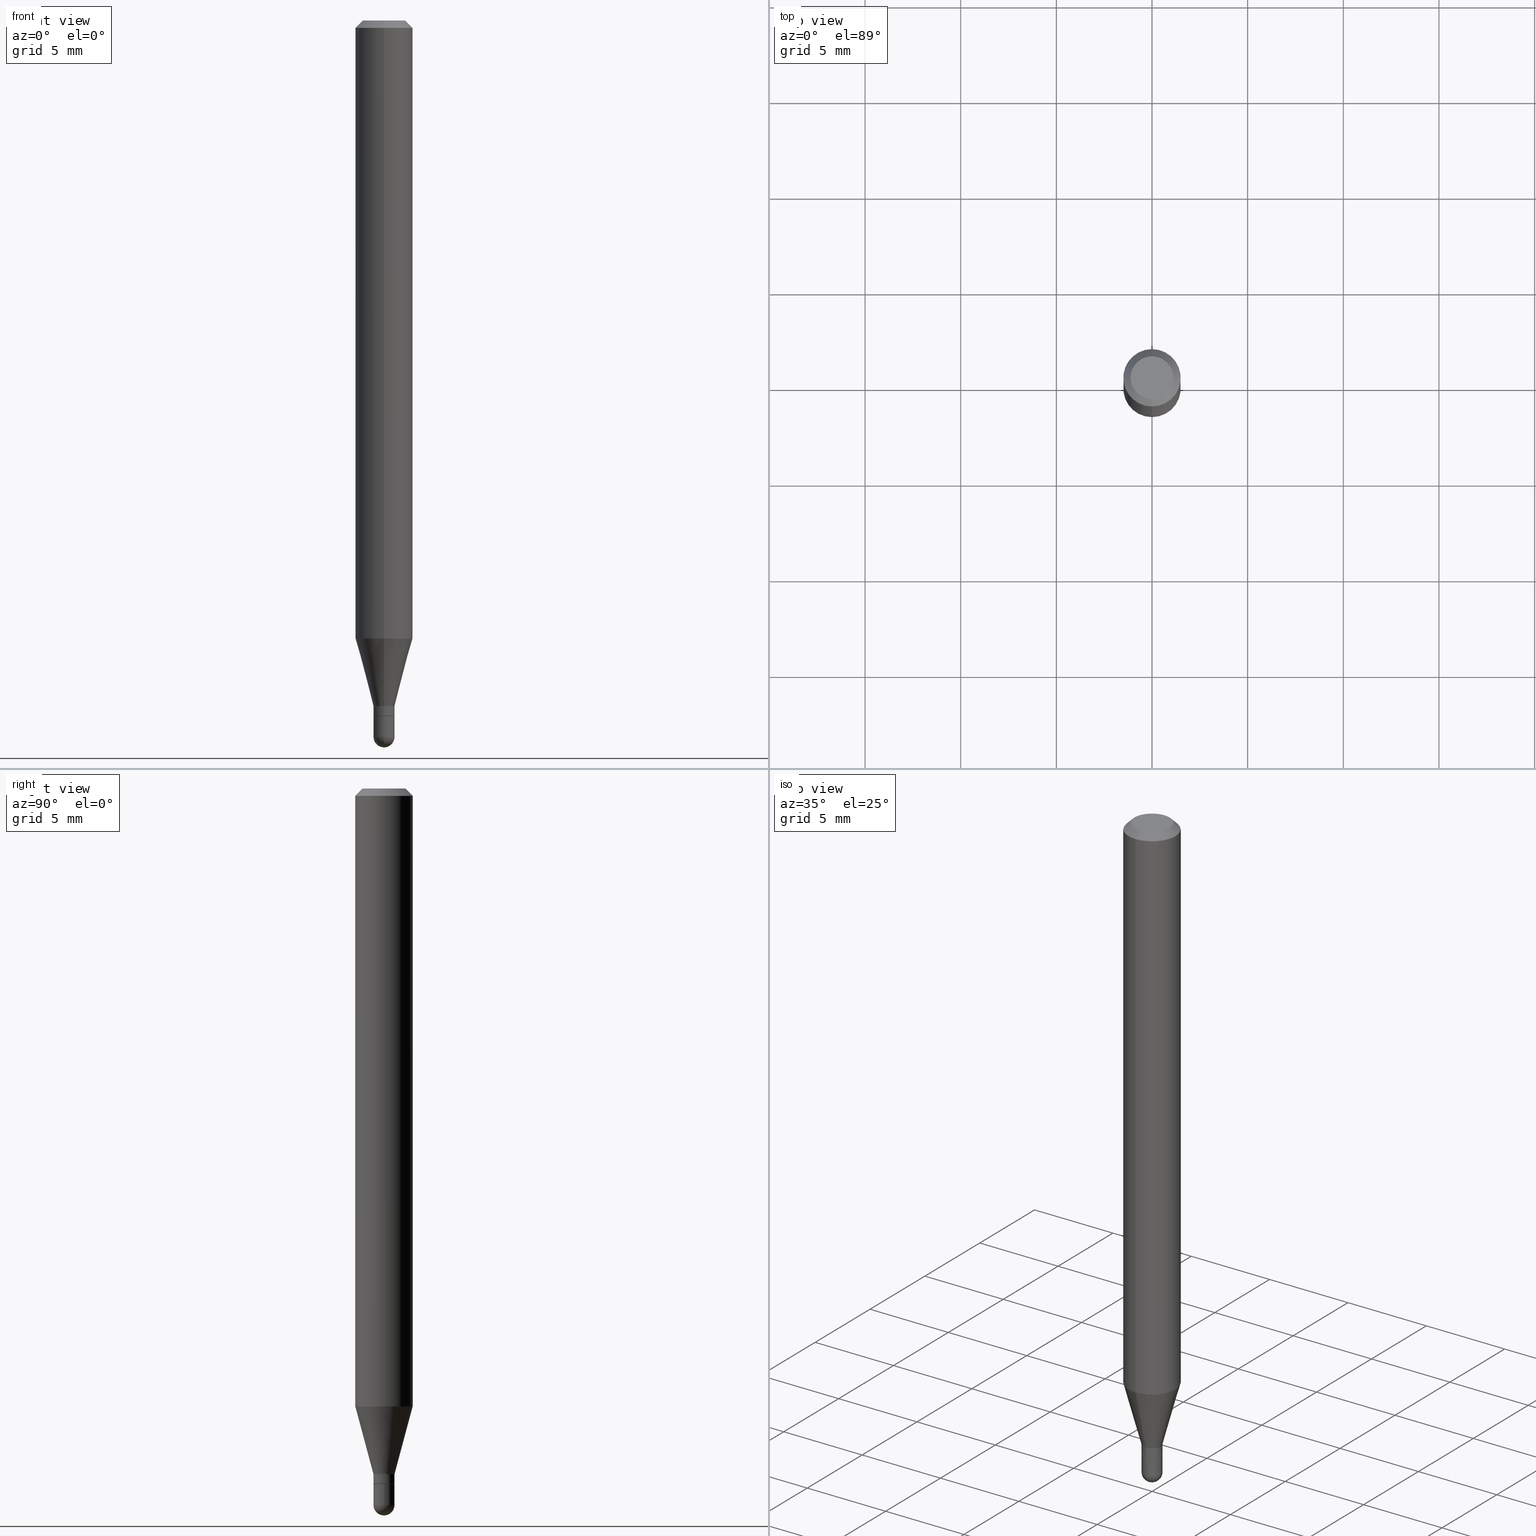
[diagram: canonical four-view strip — front | top / right | iso, engineering-drawing reading convention]
A machine part, canonical four-view strip (front | top / right | iso — engineering-drawing reading convention). The complete STEP part file that produces these views, byte-faithful:
ISO-10303-21;
HEADER;
FILE_DESCRIPTION (( 'STEP AP203' ),
    '1' );
FILE_NAME ('02928.STEP',
    '2024-03-07T21:47:33',
    ( '' ),
    ( '' ),
    'SwSTEP 2.0',
    'SolidWorks 2023',
    '' );
FILE_SCHEMA (( 'CONFIG_CONTROL_DESIGN' ));
ENDSEC;

DATA;
#1 = ORIENTED_EDGE ( 'NONE', *, *, #194, .F. ) ;
#2 = DIRECTION ( 'NONE',  ( -6.982962677686265922E-15, -1.000000000000000000, 4.626330217890369336E-15 ) ) ;
#3 = CARTESIAN_POINT ( 'NONE',  ( -0.02164999999999999564, 1.538325022920616592E-16, -1.064949447040186851E-30 ) ) ;
#4 = FACE_OUTER_BOUND ( 'NONE', #406, .T. ) ;
#5 = DIRECTION ( 'NONE',  ( -6.982962677686265922E-15, -1.000000000000000000, 3.505890868245046092E-15 ) ) ;
#6 = ORIENTED_EDGE ( 'NONE', *, *, #507, .F. ) ;
#7 = ADVANCED_FACE ( 'NONE', ( #501 ), #350, .T. ) ;
#8 = CARTESIAN_POINT ( 'NONE',  ( -3.536586717851222218E-16, -0.04404999999999999888, 6.220162960281877203E-17 ) ) ;
#9 = DIRECTION ( 'NONE',  ( 6.982962677686265922E-15, 1.000000000000000000, -3.492238314359125882E-15 ) ) ;
#10 = CIRCLE ( 'NONE', #74, 0.02164999999999999564 ) ;
#11 = CARTESIAN_POINT ( 'NONE',  ( -1.476896606330294964E-16, -0.02115000000000499467, -1.431100000000000039 ) ) ;
#12 = LINE ( 'NONE', #3, #38 ) ;
#13 = FACE_OUTER_BOUND ( 'NONE', #459, .T. ) ;
#14 = CARTESIAN_POINT ( 'NONE',  ( 3.499710408531548465E-29, -4.996658944018425519E-15, -1.431100000000000039 ) ) ;
#15 = EDGE_CURVE ( 'NONE', #269, #33, #77, .T. ) ;
#16 = DIRECTION ( 'NONE',  ( 1.000000000000000000, -6.982962677686269866E-15, 0.000000000000000000 ) ) ;
#17 =( LENGTH_UNIT ( ) NAMED_UNIT ( * ) SI_UNIT ( $, .METRE. ) );
#18 = CIRCLE ( 'NONE', #318, 0.02164999999999999564 ) ;
#19 = AXIS2_PLACEMENT_3D ( 'NONE', #231, #393, #473 ) ;
#20 = CC_DESIGN_APPROVAL ( #403, ( #260 ) ) ;
#21 = ORIENTED_EDGE ( 'NONE', *, *, #41, .F. ) ;
#22 = PERSON_AND_ORGANIZATION_ROLE ( 'design_supplier' ) ;
#23 = DIRECTION ( 'NONE',  ( -6.982962677686266711E-15, -1.000000000000000000, 0.000000000000000000 ) ) ;
#24 = ORIENTED_EDGE ( 'NONE', *, *, #165, .T. ) ;
#25 = PERSON_AND_ORGANIZATION ( #446, #167 ) ;
#26 = ORIENTED_EDGE ( 'NONE', *, *, #246, .F. ) ;
#27 = PLANE ( 'NONE',  #211 ) ;
#28 = PRODUCT ( '02928', '02928', '', ( #142 ) ) ;
#29 = LOCAL_TIME ( 16, 47, 33.00000000000000000, #149 ) ;
#30 = DATE_TIME_ROLE ( 'creation_date' ) ;
#31 = EDGE_LOOP ( 'NONE', ( #463, #454, #349, #73 ) ) ;
#32 = EDGE_LOOP ( 'NONE', ( #222, #511, #417, #303, #255 ) ) ;
#33 = VERTEX_POINT ( 'NONE', #228 ) ;
#34 = ORIENTED_EDGE ( 'NONE', *, *, #227, .T. ) ;
#35 = ORIENTED_EDGE ( 'NONE', *, *, #187, .T. ) ;
#36 = VERTEX_POINT ( 'NONE', #312 ) ;
#37 = ORIENTED_EDGE ( 'NONE', *, *, #467, .F. ) ;
#38 = VECTOR ( 'NONE', #171, 39.37007874015748143 ) ;
#39 = VECTOR ( 'NONE', #388, 39.37007874015748143 ) ;
#40 =( GEOMETRIC_REPRESENTATION_CONTEXT ( 3 ) GLOBAL_UNCERTAINTY_ASSIGNED_CONTEXT ( ( #425 ) ) GLOBAL_UNIT_ASSIGNED_CONTEXT ( ( #447, #455, #241 ) ) REPRESENTATION_CONTEXT ( 'NONE', 'WORKASPACE' ) );
#41 = EDGE_CURVE ( 'NONE', #339, #307, #460, .T. ) ;
#42 = CARTESIAN_POINT ( 'NONE',  ( 0.02164999999999999564, -1.511811419719076571E-16, 1.055692271959819963E-30 ) ) ;
#43 = CALENDAR_DATE ( 2024, 7, 3 ) ;
#44 = VERTEX_POINT ( 'NONE', #306 ) ;
#45 = ADVANCED_FACE ( 'NONE', ( #270 ), #464, .T. ) ;
#46 = CARTESIAN_POINT ( 'NONE',  ( 3.450055134574933114E-29, -4.927897485392160826E-15, -1.411099999999999799 ) ) ;
#47 = DIRECTION ( 'NONE',  ( -6.982962677686265133E-15, -1.000000000000000000, 0.000000000000000000 ) ) ;
#48 = AXIS2_PLACEMENT_3D ( 'NONE', #374, #411, #408 ) ;
#49 = DIRECTION ( 'NONE',  ( 1.000000000000000000, -7.105427357601001070E-15, 4.926315508542082329E-29 ) ) ;
#50 = CARTESIAN_POINT ( 'NONE',  ( 3.605721481279674399E-29, -5.148014660057275794E-15, -1.474449999999999816 ) ) ;
#51 = DIRECTION ( 'NONE',  ( 7.105427357601001070E-15, 1.000000000000000000, 0.000000000000000000 ) ) ;
#52 = DIRECTION ( 'NONE',  ( -2.444940213007535554E-29, 3.492238314359125882E-15, 1.000000000000000000 ) ) ;
#53 = LINE ( 'NONE', #11, #39 ) ;
#54 = LINE ( 'NONE', #429, #328 ) ;
#55 = CONICAL_SURFACE ( 'NONE', #277, 0.02165000000000018646, 0.2617993877991501295 ) ;
#56 = AXIS2_PLACEMENT_3D ( 'NONE', #46, #84, #438 ) ;
#57 = CARTESIAN_POINT ( 'NONE',  ( 3.599717260347271507E-16, 0.04404999999999999888, -2.454645658922200893E-16 ) ) ;
#58 = EDGE_CURVE ( 'NONE', #380, #44, #54, .T. ) ;
#59 = DIRECTION ( 'NONE',  ( 2.444940213007535554E-29, -3.492238314359125487E-15, -1.000000000000000000 ) ) ;
#60 = DIRECTION ( 'NONE',  ( 1.839019923739599526E-15, 0.2588190451025248473, 0.9659258262890673130 ) ) ;
#61 = EDGE_CURVE ( 'NONE', #104, #486, #247, .T. ) ;
#62 = DIRECTION ( 'NONE',  ( -6.982962677686265922E-15, -1.000000000000000000, 0.000000000000000000 ) ) ;
#63 = APPROVAL_DATE_TIME ( #404, #403 ) ;
#64 = CARTESIAN_POINT ( 'NONE',  ( 3.498953938835084060E-29, -4.997742251679343880E-15, -1.431100000000000039 ) ) ;
#65 = EDGE_CURVE ( 'NONE', #36, #249, #206, .T. ) ;
#66 = CALENDAR_DATE ( 2024, 7, 3 ) ;
#67 = LINE ( 'NONE', #484, #139 ) ;
#68 = LINE ( 'NONE', #135, #98 ) ;
#69 = CIRCLE ( 'NONE', #19, 0.05904999999999999832 ) ;
#70 = ORIENTED_EDGE ( 'NONE', *, *, #507, .T. ) ;
#71 = ORIENTED_EDGE ( 'NONE', *, *, #334, .T. ) ;
#72 = EDGE_CURVE ( 'NONE', #44, #249, #130, .T. ) ;
#73 = ORIENTED_EDGE ( 'NONE', *, *, #187, .F. ) ;
#74 = AXIS2_PLACEMENT_3D ( 'NONE', #366, #216, #372 ) ;
#75 = CC_DESIGN_APPROVAL ( #158, ( #268 ) ) ;
#76 = APPROVAL_STATUS ( 'not_yet_approved' ) ;
#77 = LINE ( 'NONE', #42, #474 ) ;
#78 = CARTESIAN_POINT ( 'NONE',  ( 3.603870046263601126E-29, -5.150666020377430166E-15, -1.474449999999999816 ) ) ;
#79 = DIRECTION ( 'NONE',  ( 1.000000000000000000, -6.982962677686265922E-15, 4.883557194083112340E-29 ) ) ;
#80 = ADVANCED_FACE ( 'NONE', ( #287 ), #204, .T. ) ;
#81 = DIRECTION ( 'NONE',  ( -6.982962677686265922E-15, -1.000000000000000000, 0.000000000000000000 ) ) ;
#82 = AXIS2_PLACEMENT_3D ( 'NONE', #471, #400, #47 ) ;
#83 = VECTOR ( 'NONE', #309, 39.37007874015748143 ) ;
#84 = DIRECTION ( 'NONE',  ( -2.444940213007535554E-29, 3.492238314359125487E-15, 1.000000000000000000 ) ) ;
#85 = CARTESIAN_POINT ( 'NONE',  ( 2.240334612438976908E-45, -3.199989238559014151E-31, -9.163146814470068329E-17 ) ) ;
#86 = EDGE_CURVE ( 'NONE', #33, #371, #18, .T. ) ;
#87 = CARTESIAN_POINT ( 'NONE',  ( 3.605721481279674399E-29, -5.148014660057275794E-15, -1.474449999999999816 ) ) ;
#88 = SPHERICAL_SURFACE ( 'NONE', #414, 0.02165000000000001298 ) ;
#89 = PRODUCT_DEFINITION ( 'UNKNOWN', '', #260, #229 ) ;
#90 = DIRECTION ( 'NONE',  ( -6.982962677686265922E-15, -1.000000000000000000, 4.626330217890369336E-15 ) ) ;
#91 = CARTESIAN_POINT ( 'NONE',  ( 3.667410319511325366E-31, -5.238357471538720427E-17, -0.01500000000000009139 ) ) ;
#92 = AXIS2_PLACEMENT_3D ( 'NONE', #320, #398, #384 ) ;
#93 = CARTESIAN_POINT ( 'NONE',  ( 3.498953938835084060E-29, -4.997742251679343880E-15, -1.431100000000000039 ) ) ;
#94 = DIRECTION ( 'NONE',  ( 2.438088387897960049E-29, -3.491481338843145188E-15, -1.000000000000000000 ) ) ;
#95 = DIRECTION ( 'NONE',  ( -2.444940213007535554E-29, 3.492238314359125487E-15, 1.000000000000000000 ) ) ;
#96 = ADVANCED_FACE ( 'NONE', ( #390 ), #55, .T. ) ;
#97 = COORDINATED_UNIVERSAL_TIME_OFFSET ( 5, 0, .BEHIND. ) ;
#98 = VECTOR ( 'NONE', #405, 39.37007874015748143 ) ;
#99 = APPROVAL_STATUS ( 'not_yet_approved' ) ;
#100 = FACE_OUTER_BOUND ( 'NONE', #495, .T. ) ;
#101 = EDGE_LOOP ( 'NONE', ( #245, #336, #184, #106 ) ) ;
#102 = ADVANCED_FACE ( 'NONE', ( #202 ), #337, .T. ) ;
#103 = EDGE_LOOP ( 'NONE', ( #413, #212 ) ) ;
#104 = VERTEX_POINT ( 'NONE', #356 ) ;
#105 = ORIENTED_EDGE ( 'NONE', *, *, #58, .T. ) ;
#106 = ORIENTED_EDGE ( 'NONE', *, *, #61, .F. ) ;
#107 = EDGE_CURVE ( 'NONE', #331, #371, #12, .T. ) ;
#108 = VERTEX_POINT ( 'NONE', #283 ) ;
#109 = APPROVAL_DATE_TIME ( #226, #451 ) ;
#110 = ORIENTED_EDGE ( 'NONE', *, *, #489, .F. ) ;
#111 = COORDINATED_UNIVERSAL_TIME_OFFSET ( 5, 0, .BEHIND. ) ;
#112 = ORIENTED_EDGE ( 'NONE', *, *, #266, .T. ) ;
#113 = CIRCLE ( 'NONE', #147, 0.02165000000000018646 ) ;
#114 = SHAPE_DEFINITION_REPRESENTATION ( #376, #298 ) ;
#115 = MANIFOLD_SOLID_BREP ( 'Body-Move/Copy2[2]', #449 ) ;
#116 = DIRECTION ( 'NONE',  ( -6.982962677686266711E-15, -1.000000000000000000, 0.000000000000000000 ) ) ;
#117 = CARTESIAN_POINT ( 'NONE',  ( 2.240334612438976908E-45, -3.199989238559014151E-31, -9.163146814470068329E-17 ) ) ;
#118 = CARTESIAN_POINT ( 'NONE',  ( 3.667410319511325366E-31, -5.238357471538720427E-17, -0.01500000000000009139 ) ) ;
#119 = CYLINDRICAL_SURFACE ( 'NONE', #321, 0.05904999999999999832 ) ;
#120 = DIRECTION ( 'NONE',  ( -2.445468806185136597E-29, 3.491481338843145583E-15, 1.000000000000000000 ) ) ;
#121 = CIRCLE ( 'NONE', #182, 0.05904999999999999832 ) ;
#122 = DIRECTION ( 'NONE',  ( -2.444940213007535554E-29, 3.492238314359125487E-15, 1.000000000000000000 ) ) ;
#123 = DIRECTION ( 'NONE',  ( -2.444940213007535554E-29, 3.492238314359125487E-15, 1.000000000000000000 ) ) ;
#124 = ADVANCED_FACE ( 'NONE', ( #239 ), #482, .F. ) ;
#125 = CARTESIAN_POINT ( 'NONE',  ( -4.051124067684085231E-16, -0.05905000000000005383, -0.01499999999999988495 ) ) ;
#126 = DIRECTION ( 'NONE',  ( -2.444940213007535554E-29, 3.492238314359125487E-15, 1.000000000000000000 ) ) ;
#127 = LINE ( 'NONE', #125, #461 ) ;
#128 = ORIENTED_EDGE ( 'NONE', *, *, #58, .F. ) ;
#129 = CARTESIAN_POINT ( 'NONE',  ( 1.538325022920620290E-16, 0.02165000000000005115, -7.560695950587525617E-17 ) ) ;
#130 = CIRCLE ( 'NONE', #82, 0.02165000000000018646 ) ;
#131 = CIRCLE ( 'NONE', #329, 0.02114999999999999519 ) ;
#132 = DIRECTION ( 'NONE',  ( -2.444940213007534993E-29, 3.492238314359125882E-15, 1.000000000000000000 ) ) ;
#133 = LOCAL_TIME ( 16, 47, 33.00000000000000000, #111 ) ;
#134 = ORIENTED_EDGE ( 'NONE', *, *, #324, .T. ) ;
#135 = CARTESIAN_POINT ( 'NONE',  ( 1.502797886132961362E-16, 0.02114999999999499572, -1.431100000000000039 ) ) ;
#136 = PERSON_AND_ORGANIZATION_ROLE ( 'classification_officer' ) ;
#137 = CARTESIAN_POINT ( 'NONE',  ( 3.498953938835084060E-29, -4.997742251679343880E-15, -1.431100000000000039 ) ) ;
#138 = FACE_OUTER_BOUND ( 'NONE', #156, .T. ) ;
#139 = VECTOR ( 'NONE', #60, 39.37007874015747433 ) ;
#140 = ADVANCED_FACE ( 'NONE', ( #281 ), #88, .T. ) ;
#141 = APPLICATION_CONTEXT ( 'configuration controlled 3d designs of mechanical parts and assemblies' ) ;
#142 = MECHANICAL_CONTEXT ( 'NONE', #250, 'mechanical' ) ;
#143 = ORIENTED_EDGE ( 'NONE', *, *, #462, .F. ) ;
#144 = ORIENTED_EDGE ( 'NONE', *, *, #483, .T. ) ;
#145 = DIRECTION ( 'NONE',  ( 0.000000000000000000, 0.000000000000000000, 1.000000000000000000 ) ) ;
#146 = AXIS2_PLACEMENT_3D ( 'NONE', #118, #326, #5 ) ;
#147 = AXIS2_PLACEMENT_3D ( 'NONE', #481, #391, #430 ) ;
#148 = VERTEX_POINT ( 'NONE', #323 ) ;
#149 = COORDINATED_UNIVERSAL_TIME_OFFSET ( 5, 0, .BEHIND. ) ;
#150 = ORIENTED_EDGE ( 'NONE', *, *, #274, .F. ) ;
#151 = DIRECTION ( 'NONE',  ( -2.444940213007535554E-29, 3.492238314359125487E-15, 1.000000000000000000 ) ) ;
#152 = APPROVAL_ROLE ( '' ) ;
#153 = EDGE_LOOP ( 'NONE', ( #448, #341 ) ) ;
#154 = COORDINATED_UNIVERSAL_TIME_OFFSET ( 5, 0, .BEHIND. ) ;
#155 = CARTESIAN_POINT ( 'NONE',  ( 4.123439461173743285E-16, 0.05904999999999994975, -0.01500000000000029955 ) ) ;
#156 = EDGE_LOOP ( 'NONE', ( #347, #412, #299, #340, #491 ) ) ;
#157 = AXIS2_PLACEMENT_3D ( 'NONE', #50, #120, #237 ) ;
#158 = APPROVAL ( #99, 'UNSPECIFIED' ) ;
#159 = APPROVAL_PERSON_ORGANIZATION ( #25, #403, #359 ) ;
#160 = SPHERICAL_SURFACE ( 'NONE', #431, 0.02165000000000001298 ) ;
#161 = CARTESIAN_POINT ( 'NONE',  ( 3.075995059520799729E-16, 0.04404999999999999888, -1.996488318198698031E-16 ) ) ;
#162 = CARTESIAN_POINT ( 'NONE',  ( 3.108793557569111606E-29, -4.440455400674538017E-15, -1.271521299796924964 ) ) ;
#163 = CARTESIAN_POINT ( 'NONE',  ( 0.000000000000000000, 0.000000000000000000, 0.000000000000000000 ) ) ;
#164 = CARTESIAN_POINT ( 'NONE',  ( 0.000000000000000000, 0.000000000000000000, 0.000000000000000000 ) ) ;
#165 = EDGE_CURVE ( 'NONE', #486, #104, #69, .T. ) ;
#166 = CIRCLE ( 'NONE', #502, 0.02164999999999991931 ) ;
#167 = ORGANIZATION ( 'UNSPECIFIED', 'UNSPECIFIED', '' ) ;
#168 = CARTESIAN_POINT ( 'NONE',  ( -4.123439461173739834E-16, -0.05904999999999999832, 2.062166724629063638E-16 ) ) ;
#169 = DIRECTION ( 'NONE',  ( 6.982962677686265922E-15, 1.000000000000000000, -3.505890868245046092E-15 ) ) ;
#170 = CYLINDRICAL_SURFACE ( 'NONE', #301, 0.02165000000000005115 ) ;
#171 = DIRECTION ( 'NONE',  ( -2.445468806185136877E-29, 3.491481338843145188E-15, 1.000000000000000000 ) ) ;
#172 = CYLINDRICAL_SURFACE ( 'NONE', #48, 0.02164999999999999564 ) ;
#173 = CC_DESIGN_PERSON_AND_ORGANIZATION_ASSIGNMENT ( #221, #379, ( #28 ) ) ;
#174 = CONICAL_SURFACE ( 'NONE', #450, 0.02114999999999999519, 0.7853981633974739252 ) ;
#175 = EDGE_LOOP ( 'NONE', ( #71, #144, #209, #26 ) ) ;
#176 = SECURITY_CLASSIFICATION_LEVEL ( 'unclassified' ) ;
#177 = DIRECTION ( 'NONE',  ( -1.807323732225328562E-15, -0.2588190451025179639, 0.9659258262890689783 ) ) ;
#178 = DIRECTION ( 'NONE',  ( -2.444940213007535554E-29, 3.492238314359125882E-15, 1.000000000000000000 ) ) ;
#179 = EDGE_CURVE ( 'NONE', #269, #181, #407, .T. ) ;
#180 = CARTESIAN_POINT ( 'NONE',  ( 1.511811419719426382E-16, 0.02164999999999499963, -1.431100000000000039 ) ) ;
#181 = VERTEX_POINT ( 'NONE', #478 ) ;
#182 = AXIS2_PLACEMENT_3D ( 'NONE', #285, #199, #90 ) ;
#183 = CONICAL_SURFACE ( 'NONE', #477, 0.02114999999999999519, 0.7853981633974739252 ) ;
#184 = ORIENTED_EDGE ( 'NONE', *, *, #246, .T. ) ;
#185 = ORIENTED_EDGE ( 'NONE', *, *, #65, .F. ) ;
#186 = ORIENTED_EDGE ( 'NONE', *, *, #444, .F. ) ;
#187 = EDGE_CURVE ( 'NONE', #36, #380, #166, .T. ) ;
#188 = APPLICATION_PROTOCOL_DEFINITION ( 'international standard', 'config_control_design', 1994, #141 ) ;
#189 = AXIS2_PLACEMENT_3D ( 'NONE', #385, #346, #508 ) ;
#190 = AXIS2_PLACEMENT_3D ( 'NONE', #85, #123, #234 ) ;
#191 = ORIENTED_EDGE ( 'NONE', *, *, #305, .F. ) ;
#192 = ORIENTED_EDGE ( 'NONE', *, *, #334, .F. ) ;
#193 = EDGE_LOOP ( 'NONE', ( #420, #191, #34, #439 ) ) ;
#194 = EDGE_CURVE ( 'NONE', #343, #262, #198, .T. ) ;
#195 = CARTESIAN_POINT ( 'NONE',  ( 2.867039938792339794E-16, 0.02164999999999525984, -1.411099999999999799 ) ) ;
#196 = AXIS2_PLACEMENT_3D ( 'NONE', #427, #218, #197 ) ;
#197 = DIRECTION ( 'NONE',  ( 1.000000000000000000, -6.982962677686267499E-15, 4.876176775795936353E-29 ) ) ;
#198 = CIRCLE ( 'NONE', #190, 0.04404999999999999888 ) ;
#199 = DIRECTION ( 'NONE',  ( -2.444940213007535554E-29, 3.492238314359125487E-15, 1.000000000000000000 ) ) ;
#200 = DIRECTION ( 'NONE',  ( -2.444940213007535554E-29, 3.492238314359125487E-15, 1.000000000000000000 ) ) ;
#201 = CARTESIAN_POINT ( 'NONE',  ( -4.123439461173429713E-16, -0.05905000000000445309, -1.271521299796924742 ) ) ;
#202 = FACE_OUTER_BOUND ( 'NONE', #261, .T. ) ;
#203 = DIRECTION ( 'NONE',  ( -2.444940213007535554E-29, 3.492238314359125487E-15, 1.000000000000000000 ) ) ;
#204 = CYLINDRICAL_SURFACE ( 'NONE', #275, 0.02165000000000005115 ) ;
#205 = DIRECTION ( 'NONE',  ( -2.444940213007535554E-29, 3.492238314359125487E-15, 1.000000000000000000 ) ) ;
#206 = LINE ( 'NONE', #129, #421 ) ;
#207 = CARTESIAN_POINT ( 'NONE',  ( 3.498953938835084060E-29, -4.997742251679343880E-15, -1.431100000000000039 ) ) ;
#208 = CARTESIAN_POINT ( 'NONE',  ( 3.497731468728580791E-29, -4.995996132522164856E-15, -1.430600000000000094 ) ) ;
#209 = ORIENTED_EDGE ( 'NONE', *, *, #165, .F. ) ;
#210 = PERSON_AND_ORGANIZATION ( #446, #167 ) ;
#211 = AXIS2_PLACEMENT_3D ( 'NONE', #137, #132, #215 ) ;
#212 = ORIENTED_EDGE ( 'NONE', *, *, #194, .T. ) ;
#213 = DATE_AND_TIME ( #66, #311 ) ;
#214 = ADVANCED_FACE ( 'NONE', ( #435 ), #395, .T. ) ;
#215 = DIRECTION ( 'NONE',  ( -6.982962677686265922E-15, -1.000000000000000000, 3.492238314359125882E-15 ) ) ;
#216 = DIRECTION ( 'NONE',  ( -2.445468806185136597E-29, 3.491481338843145583E-15, 1.000000000000000000 ) ) ;
#217 = AXIS2_PLACEMENT_3D ( 'NONE', #87, #397, #325 ) ;
#218 = DIRECTION ( 'NONE',  ( -2.445468806185136597E-29, 3.491481338843145583E-15, 1.000000000000000000 ) ) ;
#219 = ORIENTED_EDGE ( 'NONE', *, *, #444, .T. ) ;
#220 = PRODUCT_RELATED_PRODUCT_CATEGORY ( 'detail', '', ( #28 ) ) ;
#221 = PERSON_AND_ORGANIZATION ( #446, #167 ) ;
#222 = ORIENTED_EDGE ( 'NONE', *, *, #418, .T. ) ;
#223 = AXIS2_PLACEMENT_3D ( 'NONE', #208, #330, #62 ) ;
#224 = AXIS2_PLACEMENT_3D ( 'NONE', #505, #145, #300 ) ;
#225 = ORIENTED_EDGE ( 'NONE', *, *, #489, .T. ) ;
#226 = DATE_AND_TIME ( #304, #29 ) ;
#227 = EDGE_CURVE ( 'NONE', #262, #104, #509, .T. ) ;
#228 = CARTESIAN_POINT ( 'NONE',  ( 0.02164999999999999564, -5.147840085990333250E-15, -1.431100000000000039 ) ) ;
#229 = DESIGN_CONTEXT ( 'detailed design', #141, 'design' ) ;
#230 = CARTESIAN_POINT ( 'NONE',  ( 3.603870046263601126E-29, -5.150666020377430166E-15, -1.474449999999999816 ) ) ;
#231 = CARTESIAN_POINT ( 'NONE',  ( 3.667410319511325366E-31, -5.238357471538720427E-17, -0.01500000000000009139 ) ) ;
#232 = VECTOR ( 'NONE', #178, 39.37007874015748143 ) ;
#233 = DIRECTION ( 'NONE',  ( -2.444940213007535554E-29, 3.492238314359125882E-15, 1.000000000000000000 ) ) ;
#234 = DIRECTION ( 'NONE',  ( -6.982962677686265133E-15, -1.000000000000000000, 3.492238314359124699E-15 ) ) ;
#235 = CC_DESIGN_PERSON_AND_ORGANIZATION_ASSIGNMENT ( #332, #136, ( #268 ) ) ;
#236 = CARTESIAN_POINT ( 'NONE',  ( -1.476896606330294964E-16, -0.02115000000000499467, -1.431100000000000039 ) ) ;
#237 = DIRECTION ( 'NONE',  ( 1.000000000000000000, -6.982962677686269866E-15, 0.000000000000000000 ) ) ;
#238 = DIRECTION ( 'NONE',  ( -6.982962677686266711E-15, -1.000000000000000000, 0.000000000000000000 ) ) ;
#239 = FACE_OUTER_BOUND ( 'NONE', #103, .T. ) ;
#240 = CIRCLE ( 'NONE', #248, 0.02164999999999999564 ) ;
#241 =( NAMED_UNIT ( * ) SI_UNIT ( $, .STERADIAN. ) SOLID_ANGLE_UNIT ( ) );
#242 = ADVANCED_FACE ( 'NONE', ( #469 ), #383, .T. ) ;
#243 = LINE ( 'NONE', #251, #232 ) ;
#244 = DIRECTION ( 'NONE',  ( -6.982962677686266711E-15, -1.000000000000000000, 0.000000000000000000 ) ) ;
#245 = ORIENTED_EDGE ( 'NONE', *, *, #483, .F. ) ;
#246 = EDGE_CURVE ( 'NONE', #265, #486, #479, .T. ) ;
#247 = CIRCLE ( 'NONE', #146, 0.05904999999999999832 ) ;
#248 = AXIS2_PLACEMENT_3D ( 'NONE', #399, #364, #360 ) ;
#249 = VERTEX_POINT ( 'NONE', #195 ) ;
#250 = APPLICATION_CONTEXT ( 'configuration controlled 3d designs of mechanical parts and assemblies' ) ;
#251 = CARTESIAN_POINT ( 'NONE',  ( 4.195754854663390985E-16, 0.05904999999999999832, -2.062166724629063638E-16 ) ) ;
#252 = ORIENTED_EDGE ( 'NONE', *, *, #72, .T. ) ;
#253 = EDGE_LOOP ( 'NONE', ( #252, #387, #192, #143 ) ) ;
#254 = ADVANCED_FACE ( 'NONE', ( #322 ), #119, .T. ) ;
#255 = ORIENTED_EDGE ( 'NONE', *, *, #179, .T. ) ;
#256 = ORIENTED_EDGE ( 'NONE', *, *, #462, .T. ) ;
#257 = APPROVAL_DATE_TIME ( #308, #158 ) ;
#258 = AXIS2_PLACEMENT_3D ( 'NONE', #443, #295, #16 ) ;
#259 = CC_DESIGN_DATE_AND_TIME_ASSIGNMENT ( #213, #294, ( #268 ) ) ;
#260 = PRODUCT_DEFINITION_FORMATION_WITH_SPECIFIED_SOURCE ( 'ANY', '', #28, .NOT_KNOWN. ) ;
#261 = EDGE_LOOP ( 'NONE', ( #1, #134, #24, #378 ) ) ;
#262 = VERTEX_POINT ( 'NONE', #57 ) ;
#263 = PERSON_AND_ORGANIZATION ( #446, #167 ) ;
#264 = ORIENTED_EDGE ( 'NONE', *, *, #487, .F. ) ;
#265 = VERTEX_POINT ( 'NONE', #201 ) ;
#266 = EDGE_CURVE ( 'NONE', #249, #44, #113, .T. ) ;
#267 = CALENDAR_DATE ( 2024, 7, 3 ) ;
#268 = SECURITY_CLASSIFICATION ( '', '', #176 ) ;
#269 = VERTEX_POINT ( 'NONE', #315 ) ;
#270 = FACE_OUTER_BOUND ( 'NONE', #32, .T. ) ;
#271 = DIRECTION ( 'NONE',  ( -2.444940213007535554E-29, 3.492238314359125487E-15, 1.000000000000000000 ) ) ;
#272 = DIRECTION ( 'NONE',  ( 1.000000000000000000, -6.982962677686269866E-15, 0.000000000000000000 ) ) ;
#273 = DIRECTION ( 'NONE',  ( -6.982962677686265922E-15, -1.000000000000000000, 3.492238314359125487E-15 ) ) ;
#274 = EDGE_CURVE ( 'NONE', #108, #265, #485, .T. ) ;
#275 = AXIS2_PLACEMENT_3D ( 'NONE', #163, #126, #358 ) ;
#276 = CARTESIAN_POINT ( 'NONE',  ( 3.497731468728580791E-29, -4.995996132522164856E-15, -1.430600000000000094 ) ) ;
#277 = AXIS2_PLACEMENT_3D ( 'NONE', #353, #200, #365 ) ;
#278 = CC_DESIGN_APPROVAL ( #451, ( #89 ) ) ;
#279 = ADVANCED_FACE ( 'NONE', ( #475 ), #174, .T. ) ;
#280 = DIRECTION ( 'NONE',  ( -6.982962677686266711E-15, -1.000000000000000000, 3.492238314359125882E-15 ) ) ;
#281 = FACE_OUTER_BOUND ( 'NONE', #456, .T. ) ;
#282 = DIRECTION ( 'NONE',  ( -6.982962677686265133E-15, -1.000000000000000000, 3.492238314359124699E-15 ) ) ;
#283 = CARTESIAN_POINT ( 'NONE',  ( 4.195754854663700120E-16, 0.05904999999999554355, -1.271521299796925186 ) ) ;
#284 = CC_DESIGN_PERSON_AND_ORGANIZATION_ASSIGNMENT ( #263, #419, ( #89 ) ) ;
#285 = CARTESIAN_POINT ( 'NONE',  ( 3.108793557569111606E-29, -4.440455400674538017E-15, -1.271521299796924964 ) ) ;
#286 = EDGE_LOOP ( 'NONE', ( #264, #112, #256, #150 ) ) ;
#287 = FACE_OUTER_BOUND ( 'NONE', #506, .T. ) ;
#288 = AXIS2_PLACEMENT_3D ( 'NONE', #161, #316, #9 ) ;
#289 = PERSON_AND_ORGANIZATION ( #446, #167 ) ;
#290 = FACE_OUTER_BOUND ( 'NONE', #153, .T. ) ;
#291 = CARTESIAN_POINT ( 'NONE',  ( 3.603870046263601126E-29, -5.150666020377430166E-15, -1.474449999999999816 ) ) ;
#292 = DIRECTION ( 'NONE',  ( -1.000000000000000000, 6.982962677686265922E-15, -4.883557194083112340E-29 ) ) ;
#293 = CIRCLE ( 'NONE', #223, 0.02164999999999991931 ) ;
#294 = DATE_TIME_ROLE ( 'classification_date' ) ;
#295 = DIRECTION ( 'NONE',  ( -2.445468806185136597E-29, 3.491481338843145583E-15, 1.000000000000000000 ) ) ;
#296 = APPROVAL_ROLE ( '' ) ;
#297 = EDGE_LOOP ( 'NONE', ( #70, #498, #186, #499 ) ) ;
#298 = ADVANCED_BREP_SHAPE_REPRESENTATION ( '02928', ( #457, #115, #224 ), #40 ) ;
#299 = ORIENTED_EDGE ( 'NONE', *, *, #389, .T. ) ;
#300 = DIRECTION ( 'NONE',  ( 1.000000000000000000, 0.000000000000000000, 0.000000000000000000 ) ) ;
#301 = AXIS2_PLACEMENT_3D ( 'NONE', #164, #122, #280 ) ;
#302 = CC_DESIGN_SECURITY_CLASSIFICATION ( #268, ( #260 ) ) ;
#303 = ORIENTED_EDGE ( 'NONE', *, *, #15, .F. ) ;
#304 = CALENDAR_DATE ( 2024, 7, 3 ) ;
#305 = EDGE_CURVE ( 'NONE', #262, #343, #319, .T. ) ;
#306 = CARTESIAN_POINT ( 'NONE',  ( -1.511811419718744264E-16, -0.02165000000000510960, -1.411099999999999799 ) ) ;
#307 = VERTEX_POINT ( 'NONE', #236 ) ;
#308 = DATE_AND_TIME ( #267, #133 ) ;
#309 = DIRECTION ( 'NONE',  ( 4.937700262164548042E-15, 0.7071067811865451302, -0.7071067811865499042 ) ) ;
#310 = VECTOR ( 'NONE', #177, 39.37007874015749564 ) ;
#311 = LOCAL_TIME ( 16, 47, 33.00000000000000000, #97 ) ;
#312 = CARTESIAN_POINT ( 'NONE',  ( 1.538325022920955556E-16, 0.02164999999999485045, -1.430600000000000094 ) ) ;
#313 = DIRECTION ( 'NONE',  ( -2.444940213007535554E-29, 3.492238314359125882E-15, 1.000000000000000000 ) ) ;
#314 = CC_DESIGN_PERSON_AND_ORGANIZATION_ASSIGNMENT ( #289, #22, ( #260 ) ) ;
#315 = CARTESIAN_POINT ( 'NONE',  ( 0.02164999999999999564, -5.223517944009758388E-15, -1.474449999999999816 ) ) ;
#316 = DIRECTION ( 'NONE',  ( 2.444940213007534993E-29, -3.492238314359125882E-15, -1.000000000000000000 ) ) ;
#317 = CARTESIAN_POINT ( 'NONE',  ( -0.02164999999999999564, -4.918504299745789342E-15, -1.431100000000000039 ) ) ;
#318 = AXIS2_PLACEMENT_3D ( 'NONE', #14, #363, #272 ) ;
#319 = CIRCLE ( 'NONE', #362, 0.04404999999999999888 ) ;
#320 = CARTESIAN_POINT ( 'NONE',  ( 0.000000000000000000, 0.000000000000000000, 0.000000000000000000 ) ) ;
#321 = AXIS2_PLACEMENT_3D ( 'NONE', #394, #203, #273 ) ;
#322 = FACE_OUTER_BOUND ( 'NONE', #175, .T. ) ;
#323 = CARTESIAN_POINT ( 'NONE',  ( 3.655888728409472760E-29, -5.227582271523460823E-15, -1.496099999999999985 ) ) ;
#324 = EDGE_CURVE ( 'NONE', #343, #486, #127, .T. ) ;
#325 = DIRECTION ( 'NONE',  ( 1.000000000000000000, -6.982962677686269866E-15, 0.000000000000000000 ) ) ;
#326 = DIRECTION ( 'NONE',  ( -2.444940213007535554E-29, 3.492238314359125487E-15, 1.000000000000000000 ) ) ;
#327 = CARTESIAN_POINT ( 'NONE',  ( -1.511811419718716653E-16, -0.02165000000000515817, -1.474449999999999816 ) ) ;
#328 = VECTOR ( 'NONE', #52, 39.37007874015748143 ) ;
#329 = AXIS2_PLACEMENT_3D ( 'NONE', #207, #95, #244 ) ;
#330 = DIRECTION ( 'NONE',  ( -2.444940213007535554E-29, 3.492238314359125487E-15, 1.000000000000000000 ) ) ;
#331 = VERTEX_POINT ( 'NONE', #436 ) ;
#332 = PERSON_AND_ORGANIZATION ( #446, #167 ) ;
#333 = FACE_OUTER_BOUND ( 'NONE', #31, .T. ) ;
#334 = EDGE_CURVE ( 'NONE', #265, #108, #121, .T. ) ;
#335 = DIRECTION ( 'NONE',  ( -6.982962677686265922E-15, -1.000000000000000000, 0.000000000000000000 ) ) ;
#336 = ORIENTED_EDGE ( 'NONE', *, *, #274, .T. ) ;
#337 = CONICAL_SURFACE ( 'NONE', #368, 0.05904999999999999832, 0.7853981633974483900 ) ;
#338 = EDGE_CURVE ( 'NONE', #307, #380, #53, .T. ) ;
#339 = VERTEX_POINT ( 'NONE', #357 ) ;
#340 = ORIENTED_EDGE ( 'NONE', *, *, #15, .T. ) ;
#341 = ORIENTED_EDGE ( 'NONE', *, *, #361, .T. ) ;
#342 = ORIENTED_EDGE ( 'NONE', *, *, #418, .F. ) ;
#343 = VERTEX_POINT ( 'NONE', #8 ) ;
#344 = PERSON_AND_ORGANIZATION ( #446, #167 ) ;
#345 = ADVANCED_FACE ( 'NONE', ( #4 ), #160, .T. ) ;
#346 = DIRECTION ( 'NONE',  ( 2.444940213007535554E-29, -3.492238314359125487E-15, -1.000000000000000000 ) ) ;
#347 = ORIENTED_EDGE ( 'NONE', *, *, #107, .F. ) ;
#348 = DATE_AND_TIME ( #43, #432 ) ;
#349 = ORIENTED_EDGE ( 'NONE', *, *, #338, .T. ) ;
#350 = CONICAL_SURFACE ( 'NONE', #189, 0.05904999999999999832, 0.7853981633974483900 ) ;
#351 = DIRECTION ( 'NONE',  ( -2.444940213007535554E-29, 3.492238314359125487E-15, 1.000000000000000000 ) ) ;
#352 = CIRCLE ( 'NONE', #217, 0.02164999999999999564 ) ;
#353 = CARTESIAN_POINT ( 'NONE',  ( 3.450055134574933114E-29, -4.927897485392160826E-15, -1.411099999999999799 ) ) ;
#354 = EDGE_CURVE ( 'NONE', #148, #181, #468, .T. ) ;
#355 = DIRECTION ( 'NONE',  ( -4.851104656540964275E-15, -0.7071067811865500152, -0.7071067811865450192 ) ) ;
#356 = CARTESIAN_POINT ( 'NONE',  ( 4.195754854663703572E-16, 0.05904999999999994281, -0.01500000000000029955 ) ) ;
#357 = CARTESIAN_POINT ( 'NONE',  ( 1.520561454526960924E-16, 0.02114999999999499572, -1.431100000000000039 ) ) ;
#358 = DIRECTION ( 'NONE',  ( -6.982962677686266711E-15, -1.000000000000000000, 3.492238314359125882E-15 ) ) ;
#359 = APPROVAL_ROLE ( '' ) ;
#360 = DIRECTION ( 'NONE',  ( 1.000000000000000000, -6.982962677686269866E-15, 0.000000000000000000 ) ) ;
#361 = EDGE_CURVE ( 'NONE', #371, #33, #240, .T. ) ;
#362 = AXIS2_PLACEMENT_3D ( 'NONE', #117, #271, #282 ) ;
#363 = DIRECTION ( 'NONE',  ( -2.445468806185136597E-29, 3.491481338843145583E-15, 1.000000000000000000 ) ) ;
#364 = DIRECTION ( 'NONE',  ( -2.445468806185136597E-29, 3.491481338843145583E-15, 1.000000000000000000 ) ) ;
#365 = DIRECTION ( 'NONE',  ( -6.982962677686265133E-15, -1.000000000000000000, 0.000000000000000000 ) ) ;
#366 = CARTESIAN_POINT ( 'NONE',  ( 3.605721481279674399E-29, -5.148014660057275794E-15, -1.474449999999999816 ) ) ;
#367 = PLANE ( 'NONE',  #512 ) ;
#368 = AXIS2_PLACEMENT_3D ( 'NONE', #91, #59, #169 ) ;
#369 = PERSON_AND_ORGANIZATION_ROLE ( 'creator' ) ;
#370 = DIRECTION ( 'NONE',  ( -2.444940213007535554E-29, 3.492238314359125487E-15, 1.000000000000000000 ) ) ;
#371 = VERTEX_POINT ( 'NONE', #317 ) ;
#372 = DIRECTION ( 'NONE',  ( 1.000000000000000000, -6.982962677686269866E-15, 0.000000000000000000 ) ) ;
#373 = ORIENTED_EDGE ( 'NONE', *, *, #354, .T. ) ;
#374 = CARTESIAN_POINT ( 'NONE',  ( 0.000000000000000000, 0.000000000000000000, 0.000000000000000000 ) ) ;
#375 = ADVANCED_FACE ( 'NONE', ( #13 ), #170, .T. ) ;
#376 = PRODUCT_DEFINITION_SHAPE ( 'NONE', 'NONE',  #89 ) ;
#377 = VECTOR ( 'NONE', #233, 39.37007874015748143 ) ;
#378 = ORIENTED_EDGE ( 'NONE', *, *, #227, .F. ) ;
#379 = PERSON_AND_ORGANIZATION_ROLE ( 'design_owner' ) ;
#380 = VERTEX_POINT ( 'NONE', #434 ) ;
#381 = ORIENTED_EDGE ( 'NONE', *, *, #354, .F. ) ;
#382 = AXIS2_PLACEMENT_3D ( 'NONE', #470, #151, #116 ) ;
#383 = CONICAL_SURFACE ( 'NONE', #56, 0.02165000000000018646, 0.2617993877991501295 ) ;
#384 = DIRECTION ( 'NONE',  ( -6.982962677686265922E-15, -1.000000000000000000, 3.492238314359125487E-15 ) ) ;
#385 = CARTESIAN_POINT ( 'NONE',  ( 3.667410319511325366E-31, -5.238357471538720427E-17, -0.01500000000000009139 ) ) ;
#386 = COORDINATED_UNIVERSAL_TIME_OFFSET ( 5, 0, .BEHIND. ) ;
#387 = ORIENTED_EDGE ( 'NONE', *, *, #487, .T. ) ;
#388 = DIRECTION ( 'NONE',  ( -4.937700262164674260E-15, -0.7071067811865632269, 0.7071067811865319186 ) ) ;
#389 = EDGE_CURVE ( 'NONE', #409, #269, #352, .T. ) ;
#390 = FACE_OUTER_BOUND ( 'NONE', #253, .T. ) ;
#391 = DIRECTION ( 'NONE',  ( -2.444940213007535554E-29, 3.492238314359125487E-15, 1.000000000000000000 ) ) ;
#392 = CIRCLE ( 'NONE', #258, 0.02164999999999999564 ) ;
#393 = DIRECTION ( 'NONE',  ( -2.444940213007535554E-29, 3.492238314359125487E-15, 1.000000000000000000 ) ) ;
#394 = CARTESIAN_POINT ( 'NONE',  ( 0.000000000000000000, 0.000000000000000000, 0.000000000000000000 ) ) ;
#395 = CYLINDRICAL_SURFACE ( 'NONE', #92, 0.05904999999999999832 ) ;
#396 = EDGE_CURVE ( 'NONE', #339, #36, #68, .T. ) ;
#397 = DIRECTION ( 'NONE',  ( -2.445468806185136597E-29, 3.491481338843145583E-15, 1.000000000000000000 ) ) ;
#398 = DIRECTION ( 'NONE',  ( -2.444940213007535554E-29, 3.492238314359125487E-15, 1.000000000000000000 ) ) ;
#399 = CARTESIAN_POINT ( 'NONE',  ( 3.499710408531548465E-29, -4.996658944018425519E-15, -1.431100000000000039 ) ) ;
#400 = DIRECTION ( 'NONE',  ( -2.444940213007535554E-29, 3.492238314359125487E-15, 1.000000000000000000 ) ) ;
#401 = APPROVAL_PERSON_ORGANIZATION ( #344, #451, #296 ) ;
#402 = LINE ( 'NONE', #488, #310 ) ;
#403 = APPROVAL ( #494, 'UNSPECIFIED' ) ;
#404 = DATE_AND_TIME ( #496, #423 ) ;
#405 = DIRECTION ( 'NONE',  ( 5.024295867788190974E-15, 0.7071067811865681119, 0.7071067811865270336 ) ) ;
#406 = EDGE_LOOP ( 'NONE', ( #381, #225, #37, #342 ) ) ;
#407 = CIRCLE ( 'NONE', #157, 0.02164999999999999564 ) ;
#408 = DIRECTION ( 'NONE',  ( 1.000000000000000000, -6.982962677686267499E-15, 4.876176775795936353E-29 ) ) ;
#409 = VERTEX_POINT ( 'NONE', #327 ) ;
#410 = CC_DESIGN_DATE_AND_TIME_ASSIGNMENT ( #348, #30, ( #89 ) ) ;
#411 = DIRECTION ( 'NONE',  ( -2.445468806185136597E-29, 3.491481338843145583E-15, 1.000000000000000000 ) ) ;
#412 = ORIENTED_EDGE ( 'NONE', *, *, #467, .T. ) ;
#413 = ORIENTED_EDGE ( 'NONE', *, *, #305, .T. ) ;
#414 = AXIS2_PLACEMENT_3D ( 'NONE', #78, #480, #81 ) ;
#415 = ORIENTED_EDGE ( 'NONE', *, *, #72, .F. ) ;
#416 = ORIENTED_EDGE ( 'NONE', *, *, #179, .F. ) ;
#417 = ORIENTED_EDGE ( 'NONE', *, *, #86, .F. ) ;
#418 = EDGE_CURVE ( 'NONE', #181, #331, #392, .T. ) ;
#419 = PERSON_AND_ORGANIZATION_ROLE ( 'creator' ) ;
#420 = ORIENTED_EDGE ( 'NONE', *, *, #324, .F. ) ;
#421 = VECTOR ( 'NONE', #313, 39.37007874015748143 ) ;
#422 = AXIS2_PLACEMENT_3D ( 'NONE', #291, #292, #335 ) ;
#423 = LOCAL_TIME ( 16, 47, 33.00000000000000000, #154 ) ;
#424 = ORIENTED_EDGE ( 'NONE', *, *, #389, .F. ) ;
#425 = UNCERTAINTY_MEASURE_WITH_UNIT (LENGTH_MEASURE( 1.000000000000000082E-05 ), #447, 'distance_accuracy_value', 'NONE');
#426 = CC_DESIGN_PERSON_AND_ORGANIZATION_ASSIGNMENT ( #210, #369, ( #260 ) ) ;
#427 = CARTESIAN_POINT ( 'NONE',  ( 0.000000000000000000, 0.000000000000000000, 0.000000000000000000 ) ) ;
#428 = CARTESIAN_POINT ( 'NONE',  ( 3.603870046263601126E-29, -5.150666020377430166E-15, -1.474449999999999816 ) ) ;
#429 = CARTESIAN_POINT ( 'NONE',  ( -1.511811419719080269E-16, -0.02165000000000005115, 7.560695950587525617E-17 ) ) ;
#430 = DIRECTION ( 'NONE',  ( -6.982962677686265133E-15, -1.000000000000000000, 0.000000000000000000 ) ) ;
#431 = AXIS2_PLACEMENT_3D ( 'NONE', #428, #79, #472 ) ;
#432 = LOCAL_TIME ( 16, 47, 33.00000000000000000, #386 ) ;
#433 = DIRECTION ( 'NONE',  ( -6.982962677686265922E-15, -1.000000000000000000, 0.000000000000000000 ) ) ;
#434 = CARTESIAN_POINT ( 'NONE',  ( -1.511811419718726268E-16, -0.02165000000000499164, -1.430600000000000094 ) ) ;
#435 = FACE_OUTER_BOUND ( 'NONE', #101, .T. ) ;
#436 = CARTESIAN_POINT ( 'NONE',  ( -0.02164999999999999564, -4.918504299745789342E-15, -1.474449999999999816 ) ) ;
#437 = DIRECTION ( 'NONE',  ( -2.444940213007535554E-29, 3.492238314359125487E-15, 1.000000000000000000 ) ) ;
#438 = DIRECTION ( 'NONE',  ( -6.982962677686265133E-15, -1.000000000000000000, 0.000000000000000000 ) ) ;
#439 = ORIENTED_EDGE ( 'NONE', *, *, #61, .T. ) ;
#440 = CLOSED_SHELL ( 'NONE', ( #45, #140, #503, #345, #458 ) ) ;
#441 = CIRCLE ( 'NONE', #422, 0.02165000000000001298 ) ;
#442 = DIMENSIONAL_EXPONENTS ( 1.000000000000000000, 0.000000000000000000, 0.000000000000000000, 0.000000000000000000, 0.000000000000000000, 0.000000000000000000, 0.000000000000000000 ) ;
#443 = CARTESIAN_POINT ( 'NONE',  ( 3.605721481279674399E-29, -5.148014660057275794E-15, -1.474449999999999816 ) ) ;
#444 = EDGE_CURVE ( 'NONE', #380, #36, #293, .T. ) ;
#445 = DIRECTION ( 'NONE',  ( -1.000000000000000000, 6.982962677686265922E-15, -4.876176775795935793E-29 ) ) ;
#446 = PERSON ( 'UNSPECIFIED', 'UNSPECIFIED', 'UNSPECIFIED', ('UNSPECIFIED'), ('UNSPECIFIED'), ('UNSPECIFIED') ) ;
#447 =( CONVERSION_BASED_UNIT ( 'INCH', #490 ) LENGTH_UNIT ( ) NAMED_UNIT ( #442 ) );
#448 = ORIENTED_EDGE ( 'NONE', *, *, #86, .T. ) ;
#449 = CLOSED_SHELL ( 'NONE', ( #80, #279, #102, #254, #96, #242, #214, #7, #124, #500, #510, #375 ) ) ;
#450 = AXIS2_PLACEMENT_3D ( 'NONE', #93, #205, #238 ) ;
#451 = APPROVAL ( #76, 'UNSPECIFIED' ) ;
#452 = APPROVAL_PERSON_ORGANIZATION ( #453, #158, #152 ) ;
#453 = PERSON_AND_ORGANIZATION ( #446, #167 ) ;
#454 = ORIENTED_EDGE ( 'NONE', *, *, #41, .T. ) ;
#455 =( NAMED_UNIT ( * ) PLANE_ANGLE_UNIT ( ) SI_UNIT ( $, .RADIAN. ) );
#456 = EDGE_LOOP ( 'NONE', ( #110, #373, #416, #424 ) ) ;
#457 = MANIFOLD_SOLID_BREP ( 'Body-Move/Copy2[1]', #440 ) ;
#458 = ADVANCED_FACE ( 'NONE', ( #138 ), #172, .T. ) ;
#459 = EDGE_LOOP ( 'NONE', ( #185, #35, #105, #465 ) ) ;
#460 = CIRCLE ( 'NONE', #382, 0.02114999999999999519 ) ;
#461 = VECTOR ( 'NONE', #355, 39.37007874015748143 ) ;
#462 = EDGE_CURVE ( 'NONE', #44, #265, #402, .T. ) ;
#463 = ORIENTED_EDGE ( 'NONE', *, *, #396, .F. ) ;
#464 = CYLINDRICAL_SURFACE ( 'NONE', #196, 0.02164999999999999564 ) ;
#465 = ORIENTED_EDGE ( 'NONE', *, *, #266, .F. ) ;
#466 = ORIENTED_EDGE ( 'NONE', *, *, #65, .T. ) ;
#467 = EDGE_CURVE ( 'NONE', #331, #409, #10, .T. ) ;
#468 = CIRCLE ( 'NONE', #476, 0.02165000000000001298 ) ;
#469 = FACE_OUTER_BOUND ( 'NONE', #286, .T. ) ;
#470 = CARTESIAN_POINT ( 'NONE',  ( 3.498953938835084060E-29, -4.997742251679343880E-15, -1.431100000000000039 ) ) ;
#471 = CARTESIAN_POINT ( 'NONE',  ( 3.450055134574933114E-29, -4.927897485392160826E-15, -1.411099999999999799 ) ) ;
#472 = DIRECTION ( 'NONE',  ( -6.982962677686265922E-15, -1.000000000000000000, 0.000000000000000000 ) ) ;
#473 = DIRECTION ( 'NONE',  ( -6.982962677686265922E-15, -1.000000000000000000, 3.505890868245046092E-15 ) ) ;
#474 = VECTOR ( 'NONE', #504, 39.37007874015748143 ) ;
#475 = FACE_OUTER_BOUND ( 'NONE', #297, .T. ) ;
#476 = AXIS2_PLACEMENT_3D ( 'NONE', #230, #49, #51 ) ;
#477 = AXIS2_PLACEMENT_3D ( 'NONE', #64, #370, #23 ) ;
#478 = CARTESIAN_POINT ( 'NONE',  ( 1.538325022920977250E-16, 0.02164999999999485392, -1.474449999999999816 ) ) ;
#479 = LINE ( 'NONE', #168, #377 ) ;
#480 = DIRECTION ( 'NONE',  ( 1.000000000000000000, -6.982962677686265922E-15, 4.883557194083112340E-29 ) ) ;
#481 = CARTESIAN_POINT ( 'NONE',  ( 3.450055134574933114E-29, -4.927897485392160826E-15, -1.411099999999999799 ) ) ;
#482 = PLANE ( 'NONE',  #288 ) ;
#483 = EDGE_CURVE ( 'NONE', #108, #104, #243, .T. ) ;
#484 = CARTESIAN_POINT ( 'NONE',  ( 1.538325022920974785E-16, 0.02164999999999525984, -1.411099999999999799 ) ) ;
#485 = CIRCLE ( 'NONE', #492, 0.05904999999999999832 ) ;
#486 = VERTEX_POINT ( 'NONE', #493 ) ;
#487 = EDGE_CURVE ( 'NONE', #249, #108, #67, .T. ) ;
#488 = CARTESIAN_POINT ( 'NONE',  ( -1.511811419718744264E-16, -0.02165000000000510960, -1.411099999999999799 ) ) ;
#489 = EDGE_CURVE ( 'NONE', #148, #409, #441, .T. ) ;
#490 = LENGTH_MEASURE_WITH_UNIT ( LENGTH_MEASURE( 0.02539999999999999897 ), #17 );
#491 = ORIENTED_EDGE ( 'NONE', *, *, #361, .F. ) ;
#492 = AXIS2_PLACEMENT_3D ( 'NONE', #162, #351, #2 ) ;
#493 = CARTESIAN_POINT ( 'NONE',  ( -4.123439461173736383E-16, -0.05905000000000005383, -0.01499999999999988495 ) ) ;
#494 = APPROVAL_STATUS ( 'not_yet_approved' ) ;
#495 = EDGE_LOOP ( 'NONE', ( #6, #21 ) ) ;
#496 = CALENDAR_DATE ( 2024, 7, 3 ) ;
#497 = APPLICATION_PROTOCOL_DEFINITION ( 'international standard', 'config_control_design', 1994, #250 ) ;
#498 = ORIENTED_EDGE ( 'NONE', *, *, #396, .T. ) ;
#499 = ORIENTED_EDGE ( 'NONE', *, *, #338, .F. ) ;
#500 = ADVANCED_FACE ( 'NONE', ( #100 ), #27, .F. ) ;
#501 = FACE_OUTER_BOUND ( 'NONE', #193, .T. ) ;
#502 = AXIS2_PLACEMENT_3D ( 'NONE', #276, #437, #433 ) ;
#503 = ADVANCED_FACE ( 'NONE', ( #290 ), #367, .F. ) ;
#504 = DIRECTION ( 'NONE',  ( -2.445468806185136877E-29, 3.491481338843145188E-15, 1.000000000000000000 ) ) ;
#505 = CARTESIAN_POINT ( 'NONE',  ( 0.000000000000000000, 0.000000000000000000, 0.000000000000000000 ) ) ;
#506 = EDGE_LOOP ( 'NONE', ( #219, #466, #415, #128 ) ) ;
#507 = EDGE_CURVE ( 'NONE', #307, #339, #131, .T. ) ;
#508 = DIRECTION ( 'NONE',  ( 6.982962677686265922E-15, 1.000000000000000000, -3.505890868245046092E-15 ) ) ;
#509 = LINE ( 'NONE', #155, #83 ) ;
#510 = ADVANCED_FACE ( 'NONE', ( #333 ), #183, .T. ) ;
#511 = ORIENTED_EDGE ( 'NONE', *, *, #107, .T. ) ;
#512 = AXIS2_PLACEMENT_3D ( 'NONE', #180, #94, #445 ) ;
ENDSEC;
END-ISO-10303-21;
